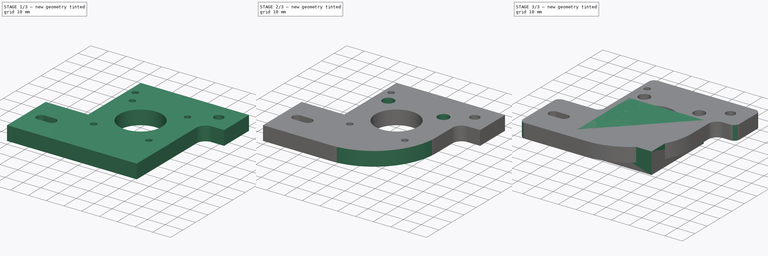
[diagram: build sequence overview — one tinted view per stage of 3, left to right]
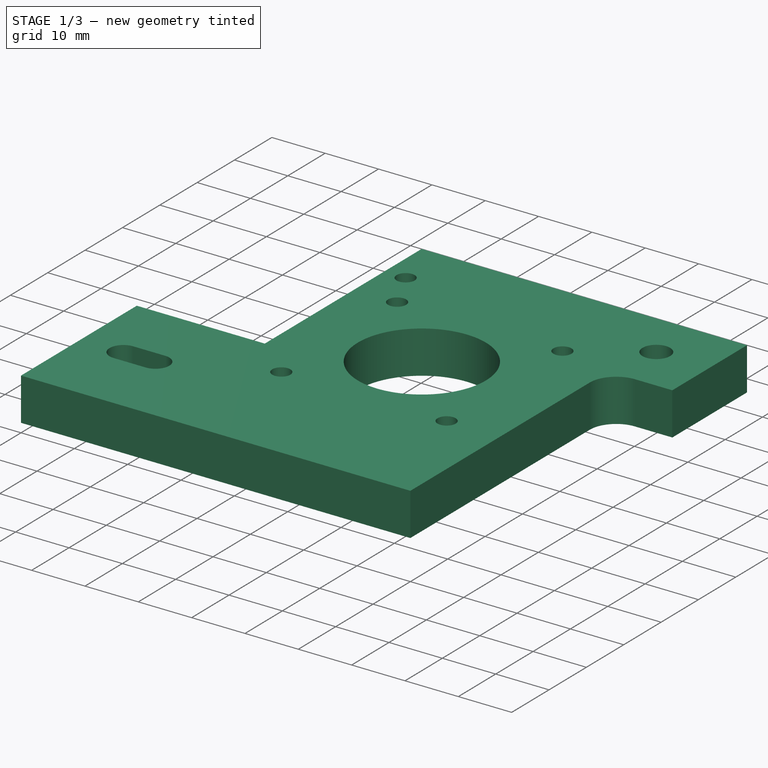
[diagram: stage 1 of 3 — iso view after this stage's code; geometry added in this stage tinted green]
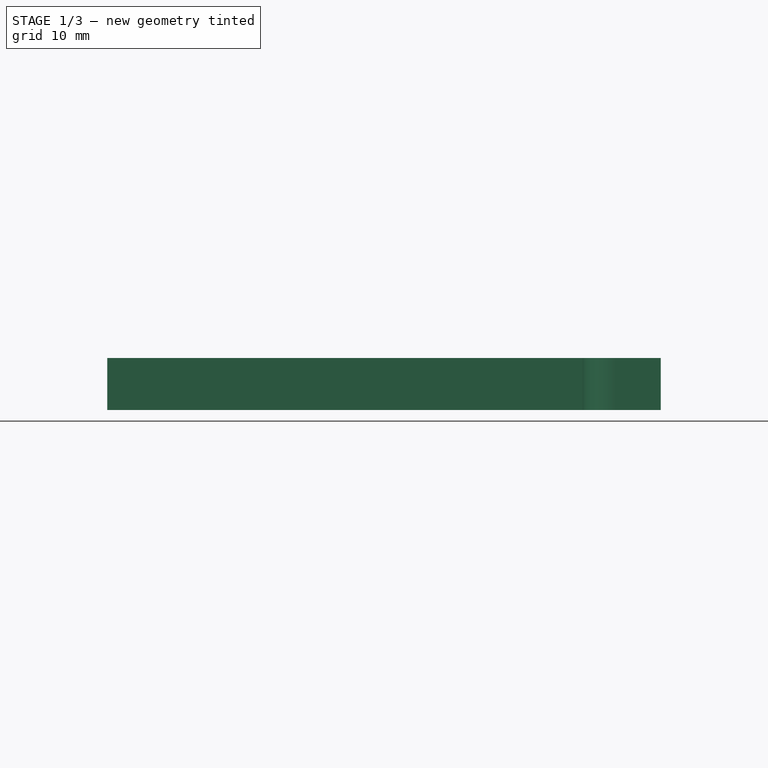
[diagram: stage 1 of 3 — front view after this stage's code; geometry added in this stage tinted green]
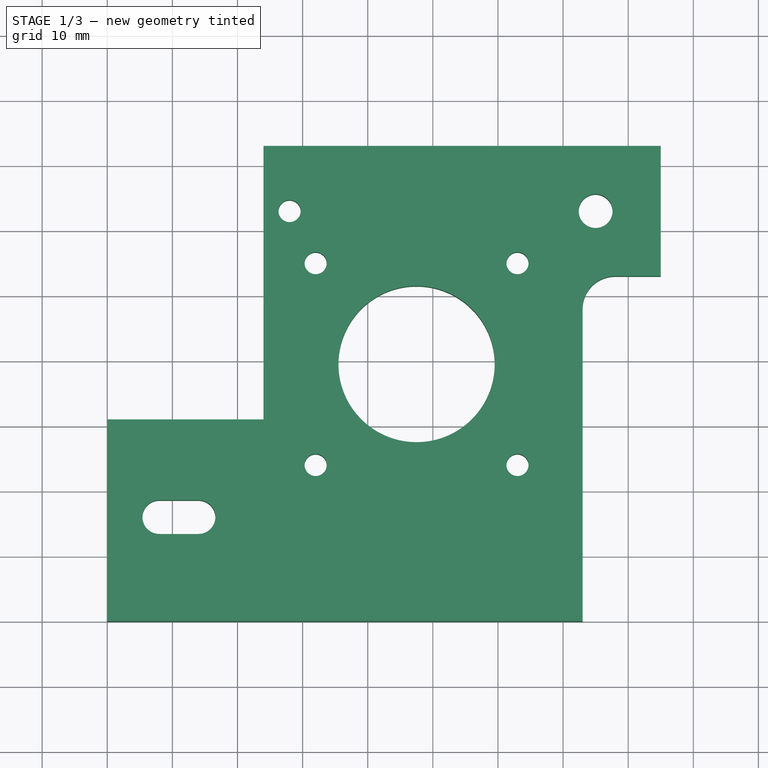
[diagram: stage 1 of 3 — top view after this stage's code; geometry added in this stage tinted green]
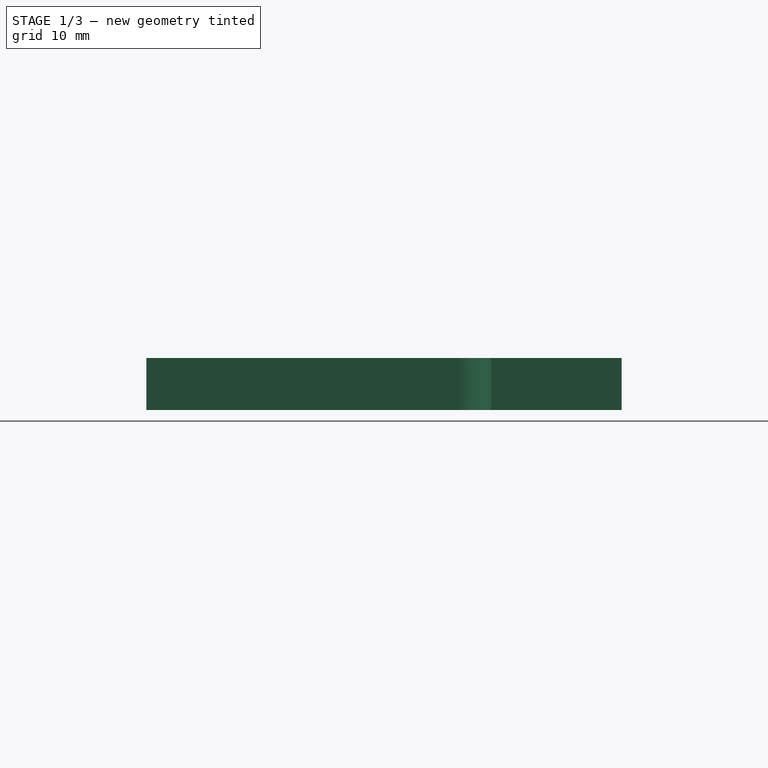
[diagram: stage 1 of 3 — right view after this stage's code; geometry added in this stage tinted green]
FCSTD DOCUMENT  (FreeCAD 0.16R6706 (Git))
Label: nema-right
License: All rights reserved
LicenseURL: http://en.wikipedia.org/wiki/All_rights_reserved
objects: Part::Box×2, Sketcher::SketchObject×2, PartDesign::Pocket×2, PartDesign::Fillet×2
note: 10 computed .brp shape members not serialized (recipe doc carries the construction recipe); baked Part::Feature solids carry a one-line shape summary decoded from their .brp

FEATURE [Part::Box] Box  label="Cube"
  Height = 8
  Length = 85
  Width = 73
FEATURE [Sketcher::SketchObject] Sketch
  Placement = pos=(0,0,8) rot=(0,0,1;0rad)
  Support = -> Box [Face6]
  sketch-geometry (20):
    g0: Circle CenterX=32 CenterY=55 CenterZ=0 NormalX=0 NormalY=0 NormalZ=1 Radius=1.7
    g1: Circle CenterX=63 CenterY=55 CenterZ=0 NormalX=0 NormalY=0 NormalZ=1 Radius=1.7
    g2: Circle CenterX=63 CenterY=24 CenterZ=0 NormalX=0 NormalY=0 NormalZ=1 Radius=1.7
    g3: Circle CenterX=32 CenterY=24 CenterZ=0 NormalX=0 NormalY=0 NormalZ=1 Radius=1.7
    g4: Circle CenterX=47.5 CenterY=39.5 CenterZ=0 NormalX=0 NormalY=0 NormalZ=1 Radius=12
    g5: Circle CenterX=28 CenterY=63 CenterZ=0 NormalX=0 NormalY=0 NormalZ=1 Radius=1.7
    g6: Circle CenterX=75 CenterY=63 CenterZ=0 NormalX=0 NormalY=0 NormalZ=1 Radius=2.6
    g7: LineSegment StartX=24 StartY=73 StartZ=0 EndX=0 EndY=73 EndZ=0
    g8: LineSegment StartX=0 StartY=73 StartZ=0 EndX=0 EndY=31 EndZ=0
    g9: LineSegment StartX=0 StartY=31 StartZ=0 EndX=24 EndY=31 EndZ=0
    g10: LineSegment StartX=24 StartY=31 StartZ=0 EndX=24 EndY=73 EndZ=0
    g11: ArcOfCircle CenterX=8 CenterY=16 CenterZ=0 NormalX=0 NormalY=0 NormalZ=1 Radius=2.6 StartAngle=1.5708 EndAngle=4.71239
    g12: ArcOfCircle CenterX=14 CenterY=16 CenterZ=0 NormalX=0 NormalY=0 NormalZ=1 Radius=2.6 StartAngle=4.71239 EndAngle=7.85398
    g13: LineSegment StartX=8 StartY=13.4 StartZ=0 EndX=14 EndY=13.4 EndZ=0
    g14: LineSegment StartX=8 StartY=18.6 StartZ=0 EndX=14 EndY=18.6 EndZ=0
    g15: LineSegment StartX=96.2 StartY=53 StartZ=0 EndX=78 EndY=53 EndZ=0
    g16: LineSegment StartX=73 StartY=48 StartZ=0 EndX=73 EndY=-12.2 EndZ=0
    g17: LineSegment StartX=73 StartY=-12.2 StartZ=0 EndX=96.2 EndY=-12.2 EndZ=0
    g18: LineSegment StartX=96.2 StartY=-12.2 StartZ=0 EndX=96.2 EndY=53 EndZ=0
    g19: ArcOfCircle CenterX=78 CenterY=48 CenterZ=0 NormalX=0 NormalY=0 NormalZ=1 Radius=5 StartAngle=1.5708 EndAngle=3.14159
  constraints (54):
    c: Radius(g0) = 1.7
    c: Equal(g0,g1)
    c: Equal(g1,g2)
    c: Equal(g2,g3)
    c: Distance(g0,g1) = 31
    c: Distance(g3,g2) = 31
    c: Distance(g0,g3) = 31
    c: Distance(g1,g2) = 31
    c: Radius(g4) = 12
    c: DistanceY(g-1,g4) = 39.5
    c: DistanceY(g-1,g2) = 24
    c: DistanceY(g-1,g3) = 24
    c: Equal(g0,g5) = 1.7
    c: DistanceX(g-2,g5) = 28
    c: DistanceY(g-1,g5) = 63
    c: DistanceX(g-2,g0) = 32
    c: DistanceX(g-2,g3) = 32
    c: DistanceX(g-2,g4) = 47.5
    c: DistanceY(g-1,g6) = 63
    c: Coincident(g7,g8)
    c: Coincident(g8,g9)
    c: Coincident(g9,g10)
    c: Coincident(g10,g7)
    c: Horizontal(g7)
    c: Horizontal(g9)
    c: Vertical(g8)
    c: Vertical(g10)
    c: Distance(g7) = 24
    c: Distance(g8) = 42
    c: DistanceY(g-1,g8) = 31
    c: DistanceX(g-2,g8) = 0
    c: Tangent(g11,g14) = 1.5708
    c: Tangent(g11,g13) = -1.5708
    c: Tangent(g13,g12) = -1.5708
    c: Tangent(g14,g12) = 1.5708
    c: Horizontal(g13)
    c: Equal(g11,g12)
    c: Radius(g12) = 2.6
    c: Distance(g14) = 6
    c: DistanceY(g-1,g12) = 16
    c: DistanceX(g-2,g11) = 8
    c: DistanceX(g-2,g6) = 75
    c: Coincident(g16,g17)
    c: Coincident(g17,g18)
    c: Coincident(g18,g15)
    c: Horizontal(g15)
    c: Horizontal(g17)
    c: Vertical(g16)
    c: Vertical(g18)
    c: DistanceX(g-2,g16) = 73
    c: DistanceY(g-1,g15) = 53
    c: Tangent(g15,g19) = -1.5708
    c: Tangent(g16,g19) = -1.5708
    c: Radius(g19) = 5
FEATURE [PartDesign::Pocket] Pocket
  Length = 8
  Sketch = -> Sketch
  Type = 0
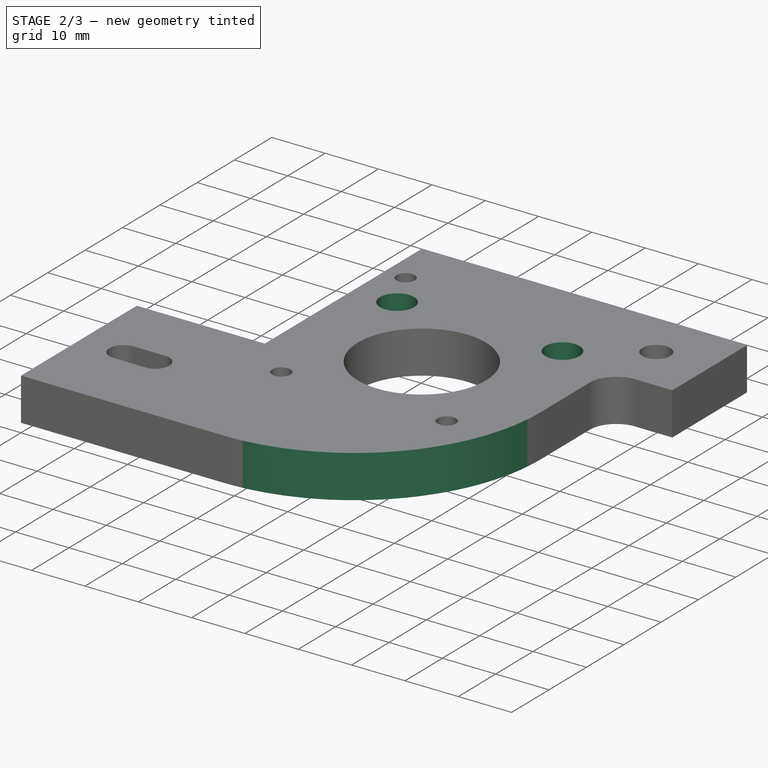
[diagram: stage 2 of 3 — iso view after this stage's code; geometry added in this stage tinted green]
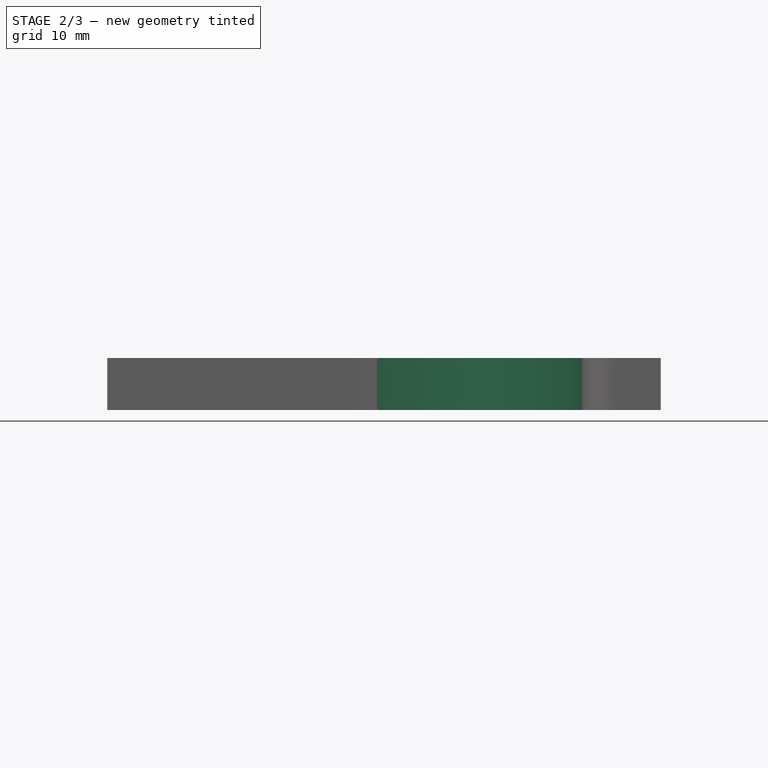
[diagram: stage 2 of 3 — front view after this stage's code; geometry added in this stage tinted green]
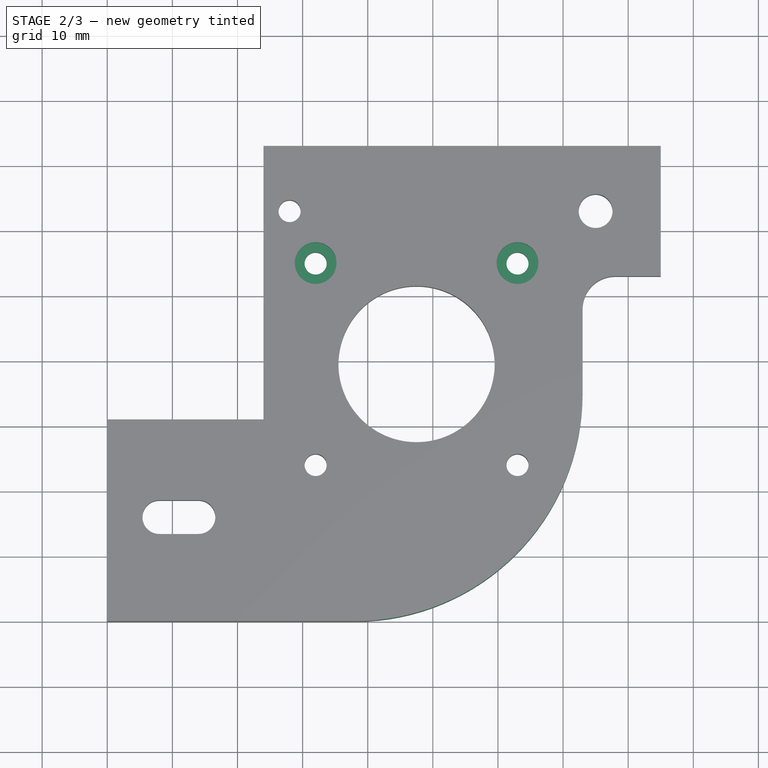
[diagram: stage 2 of 3 — top view after this stage's code; geometry added in this stage tinted green]
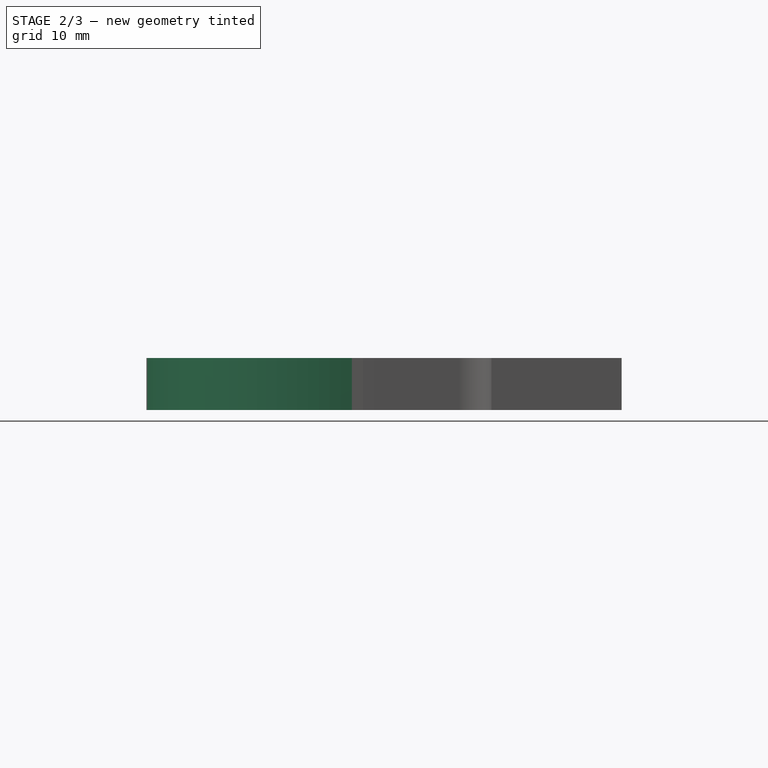
[diagram: stage 2 of 3 — right view after this stage's code; geometry added in this stage tinted green]
FEATURE [Sketcher::SketchObject] Sketch001
  Placement = pos=(0,0,8) rot=(0,0,1;0rad)
  Support = -> Pocket [Face2]
  sketch-geometry (2):
    g0: Circle CenterX=32 CenterY=55 CenterZ=0 NormalX=0 NormalY=0 NormalZ=1 Radius=3.2
    g1: Circle CenterX=63 CenterY=55 CenterZ=0 NormalX=0 NormalY=0 NormalZ=1 Radius=3.2
  constraints (6):
    c: Radius(g0) = 3.2
    c: Equal(g0,g1)
    c: Distance(g0,g1) = 31
    c: DistanceX(g-2,g0) = 32
    c: DistanceY(g-1,g0) = 55
    c: DistanceY(g-1,g1) = 55
FEATURE [PartDesign::Pocket] Pocket001
  Length = 3
  Sketch = -> Sketch001
  Type = 0
FEATURE [PartDesign::Fillet] Fillet
  Base = -> Pocket001 [Edge44]
  Radius = 35
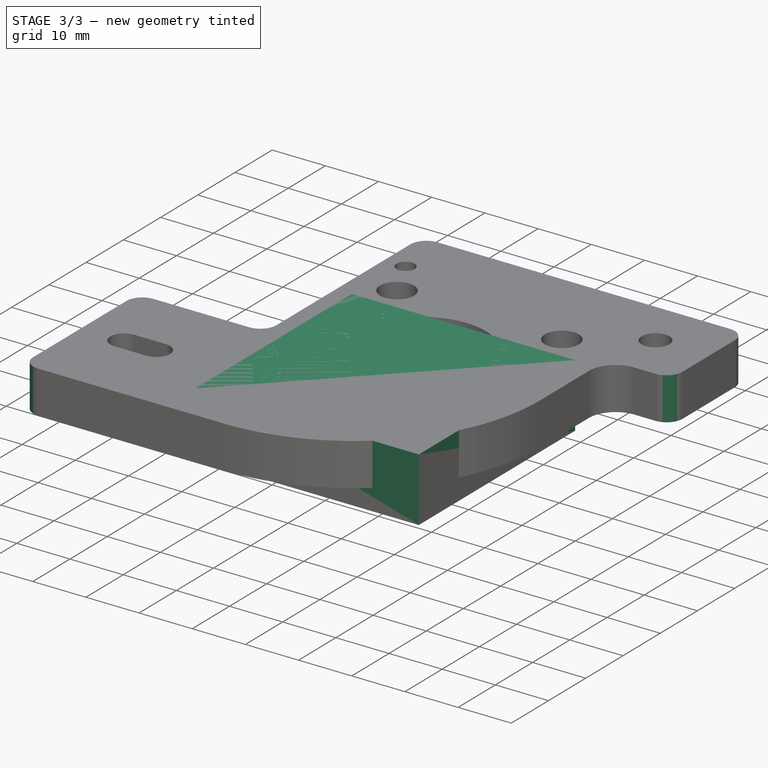
[diagram: stage 3 of 3 — iso view after this stage's code; geometry added in this stage tinted green]
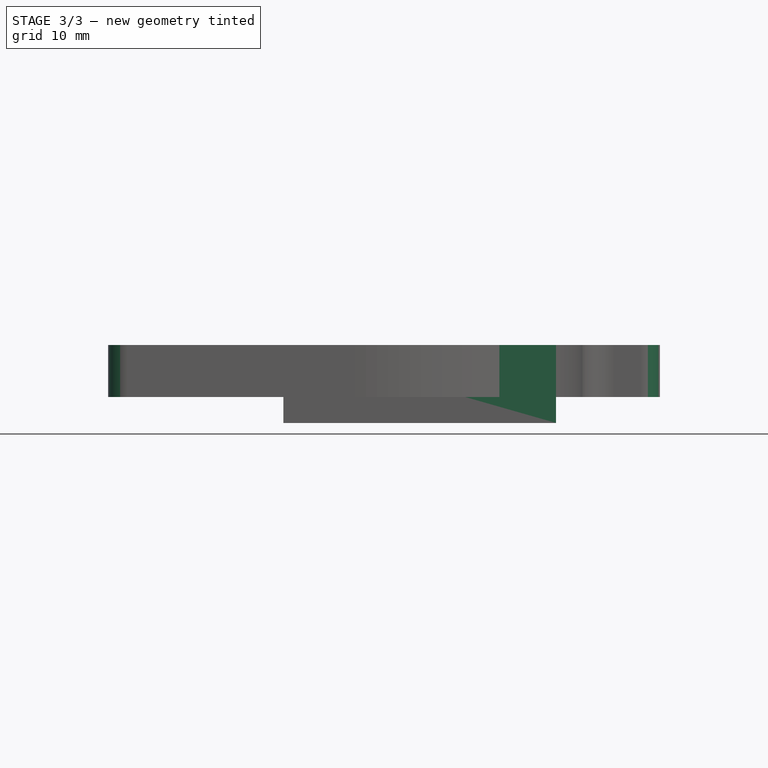
[diagram: stage 3 of 3 — front view after this stage's code; geometry added in this stage tinted green]
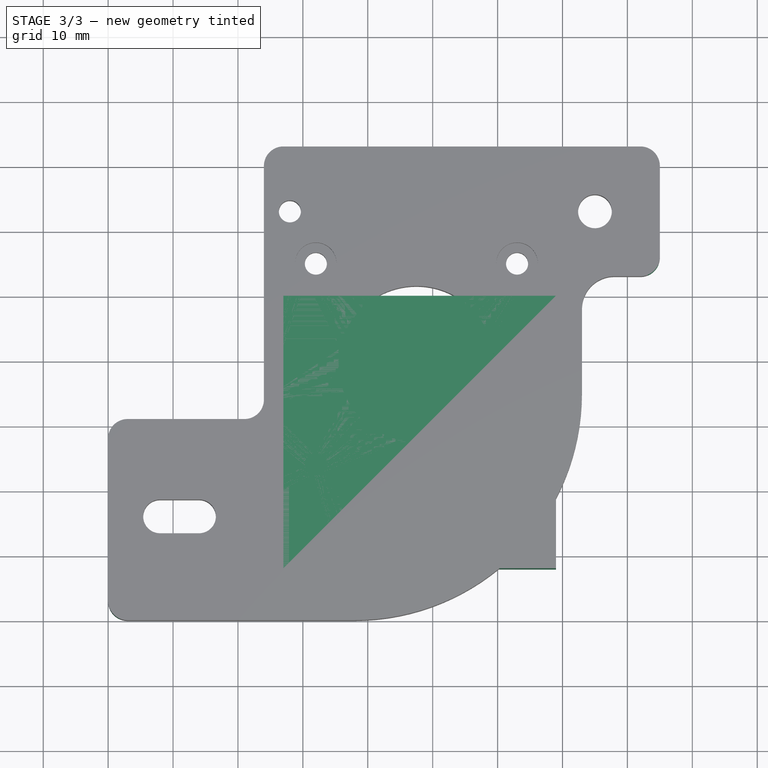
[diagram: stage 3 of 3 — top view after this stage's code; geometry added in this stage tinted green]
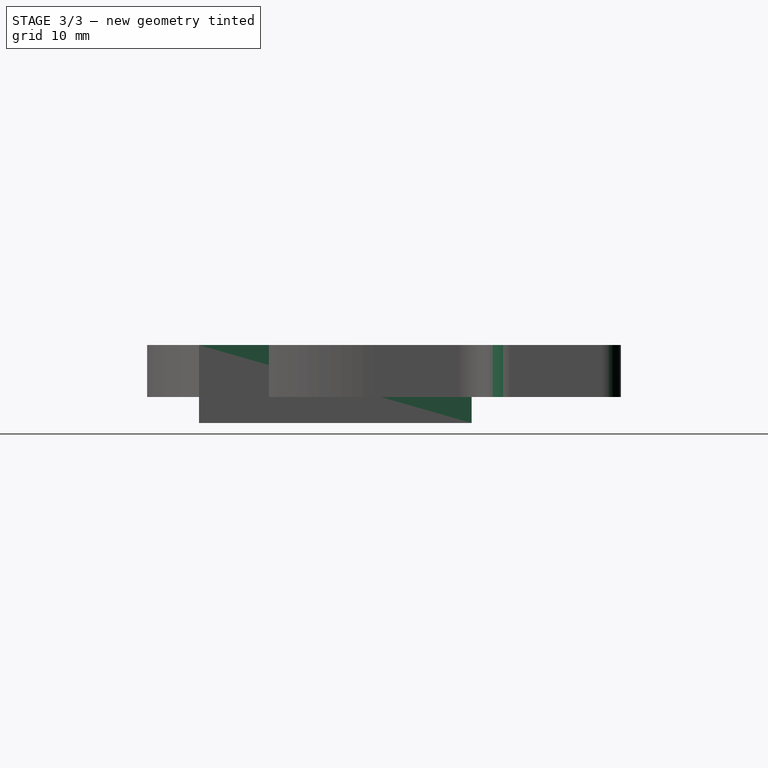
[diagram: stage 3 of 3 — right view after this stage's code; geometry added in this stage tinted green]
FEATURE [Part::Box] Box001  label="nema"
  Height = 12
  Length = 42
  Placement = pos=(27,8,-4) rot=(0,0,1;0rad)
  Width = 42
FEATURE [PartDesign::Fillet] Fillet001
  Base = -> Fillet [Edge32,Edge27,Edge24,Edge36,Edge40,Edge38]
  Radius = 3
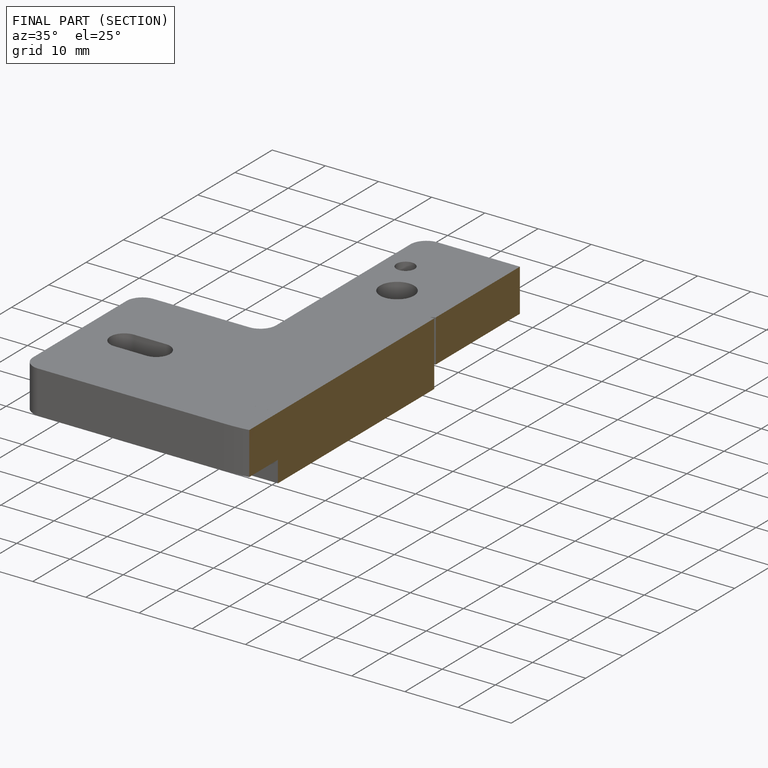
[diagram: finished part — half-section view (interior)]
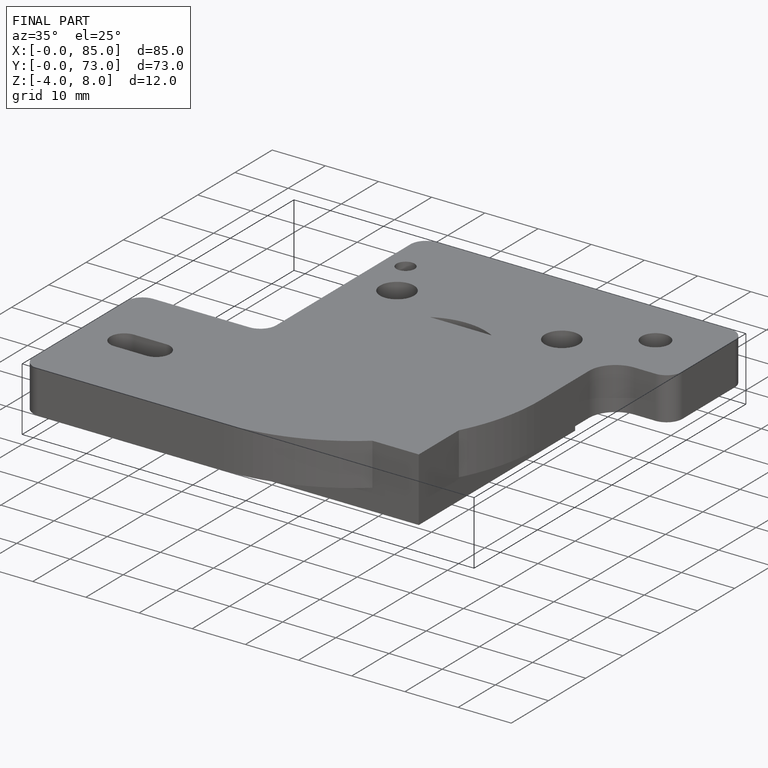
[diagram: finished part — iso view with bounding-box wireframe]
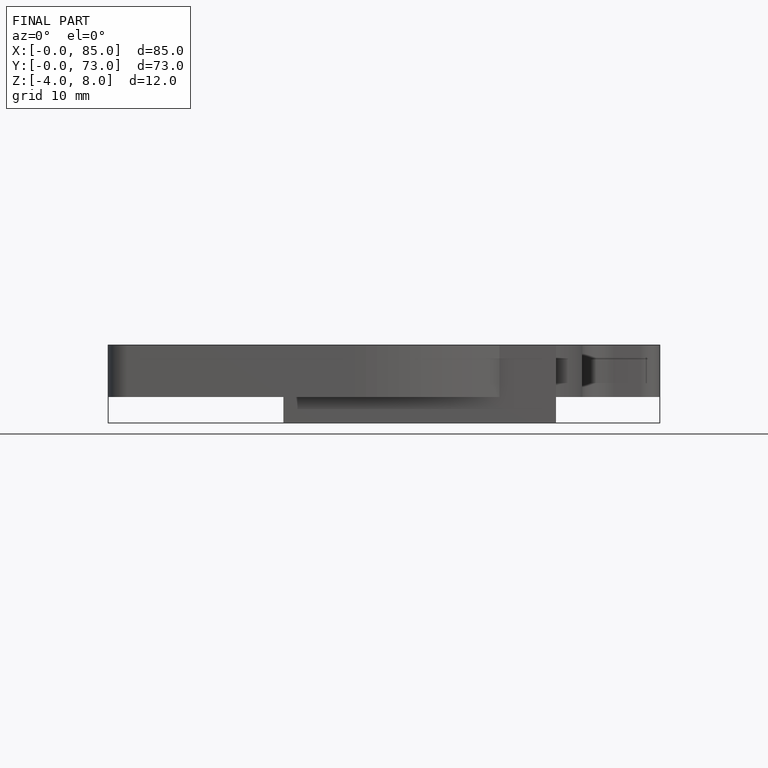
[diagram: finished part — front view with bounding-box wireframe]
